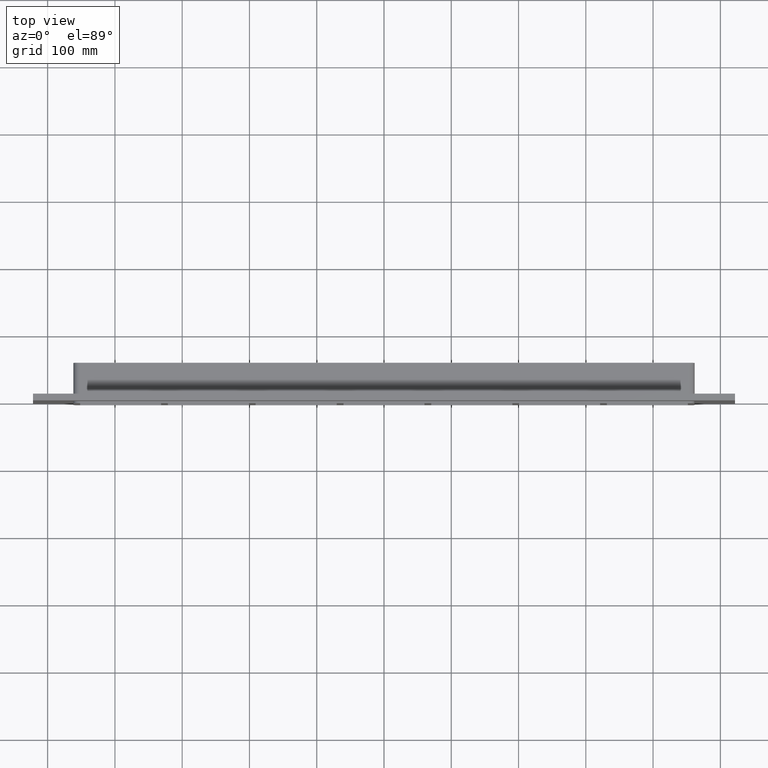
[diagram: clean part render]
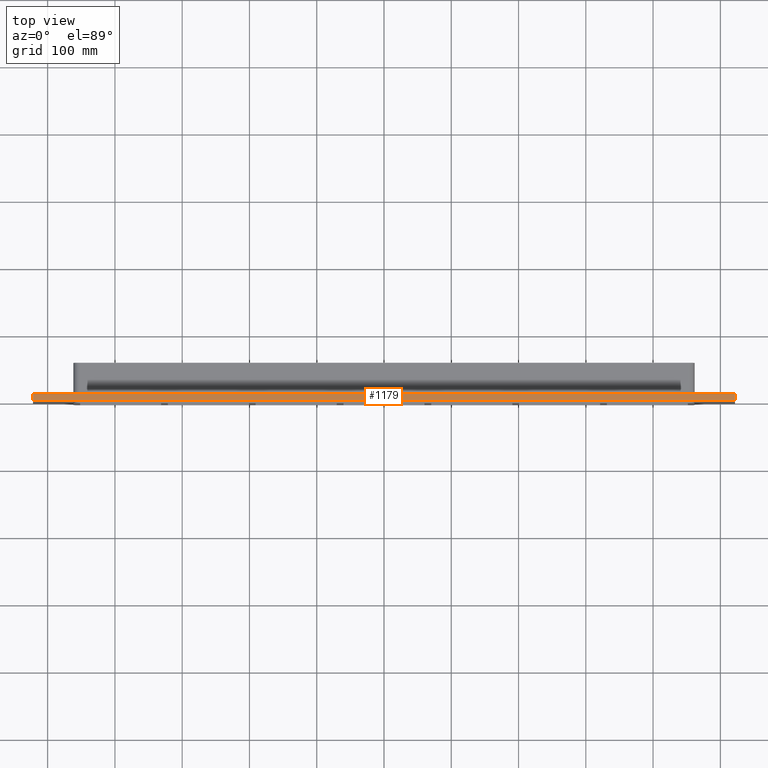
[diagram: same view with one face highlighted and labeled with its STEP entity id]
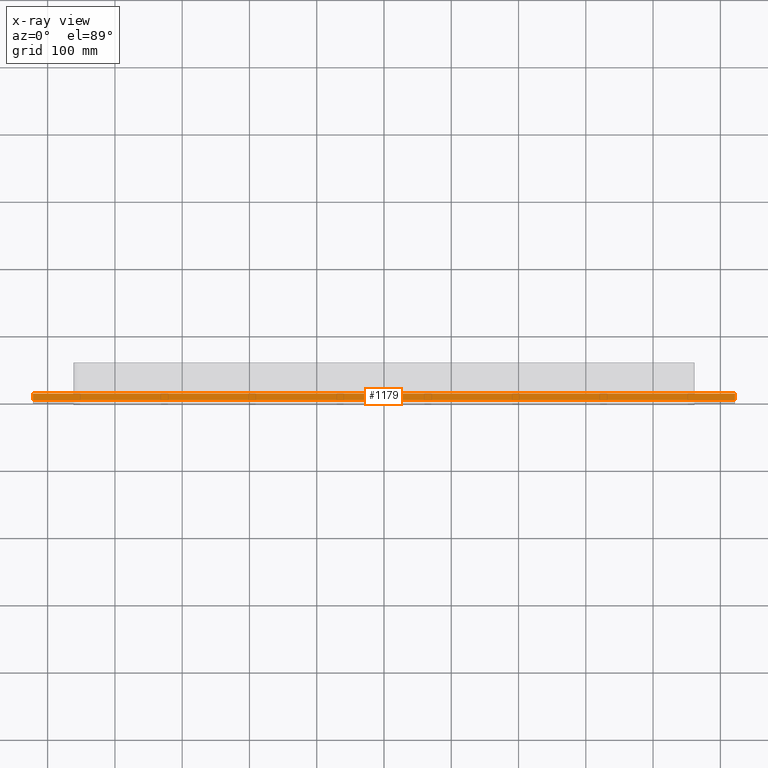
[diagram: x-ray of the same camera — body ghosted, the highlighted face saturated]
A machine part, top view. The second image highlights one B-rep face of the part: STEP entity #1179.
The next image is the same camera in x-ray: the body ghosted, the highlighted face saturated — about 0% of this face is hidden behind the body in this view.
In plain terms, the highlighted planar face has unit normal (0, 0, 1).
Its self-contained STEP definition (entity closure, byte-faithful):
#897=CARTESIAN_POINT('',(-521.75,10.0,149.75));
#898=VERTEX_POINT('',#897);
#899=CARTESIAN_POINT('',(521.75000000000023,10.0,149.75));
#900=VERTEX_POINT('',#899);
#901=CARTESIAN_POINT('',(-521.75,10.0,149.75));
#902=DIRECTION('',(1.0,0.0,0.0));
#903=VECTOR('',#902,1043.5000000000002);
#904=LINE('',#901,#903);
#905=EDGE_CURVE('',#898,#900,#904,.T.);
#1007=CARTESIAN_POINT('',(-521.75,0.0,149.75));
#1008=VERTEX_POINT('',#1007);
#1009=CARTESIAN_POINT('',(521.75000000000011,0.0,149.75));
#1010=VERTEX_POINT('',#1009);
#1011=CARTESIAN_POINT('',(-521.75,0.0,149.75));
#1012=DIRECTION('',(1.0,0.0,0.0));
#1013=VECTOR('',#1012,1043.5000000000002);
#1014=LINE('',#1011,#1013);
#1015=EDGE_CURVE('',#1008,#1010,#1014,.T.);
#1118=CARTESIAN_POINT('',(-521.75,0.0,149.75));
#1119=DIRECTION('',(0.0,1.0,0.0));
#1120=VECTOR('',#1119,10.0);
#1121=LINE('',#1118,#1120);
#1122=EDGE_CURVE('',#1008,#898,#1121,.T.);
#1159=CARTESIAN_POINT('',(521.75000000000011,0.0,149.75));
#1160=DIRECTION('',(0.0,1.0,0.0));
#1161=VECTOR('',#1160,10.0);
#1162=LINE('',#1159,#1161);
#1163=EDGE_CURVE('',#1010,#900,#1162,.T.);
#1168=CARTESIAN_POINT('',(-521.75,0.0,149.75));
#1169=DIRECTION('',(0.0,0.0,1.0));
#1170=DIRECTION('',(1.0,0.0,0.0));
#1171=AXIS2_PLACEMENT_3D('',#1168,#1169,#1170);
#1172=PLANE('',#1171);
#1173=ORIENTED_EDGE('',*,*,#1015,.T.);
#1174=ORIENTED_EDGE('',*,*,#1163,.T.);
#1175=ORIENTED_EDGE('',*,*,#905,.F.);
#1176=ORIENTED_EDGE('',*,*,#1122,.F.);
#1177=EDGE_LOOP('',(#1173,#1174,#1175,#1176));
#1178=FACE_OUTER_BOUND('',#1177,.T.);
#1179=ADVANCED_FACE('',(#1178),#1172,.T.);